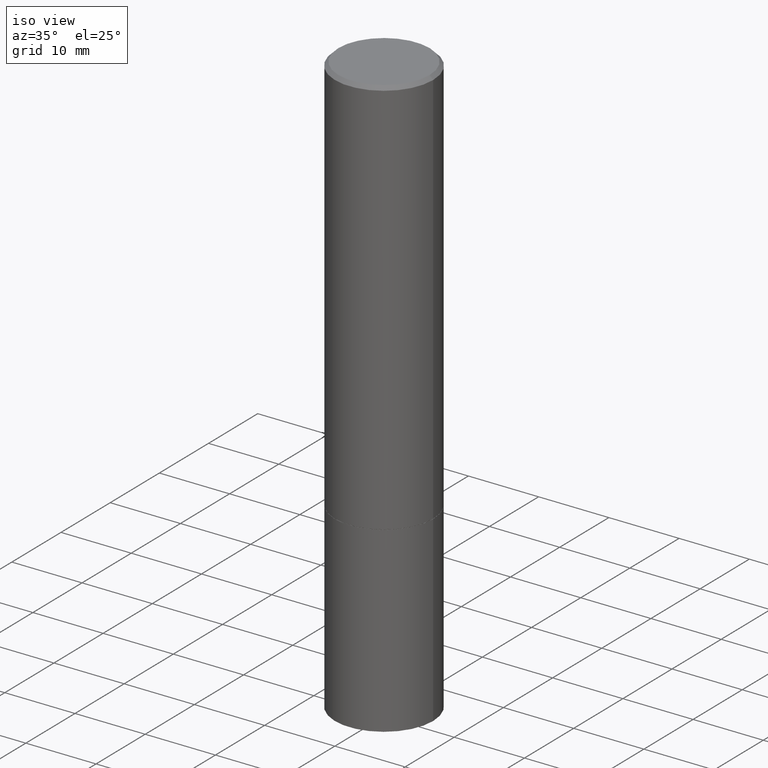
[diagram: clean part render]
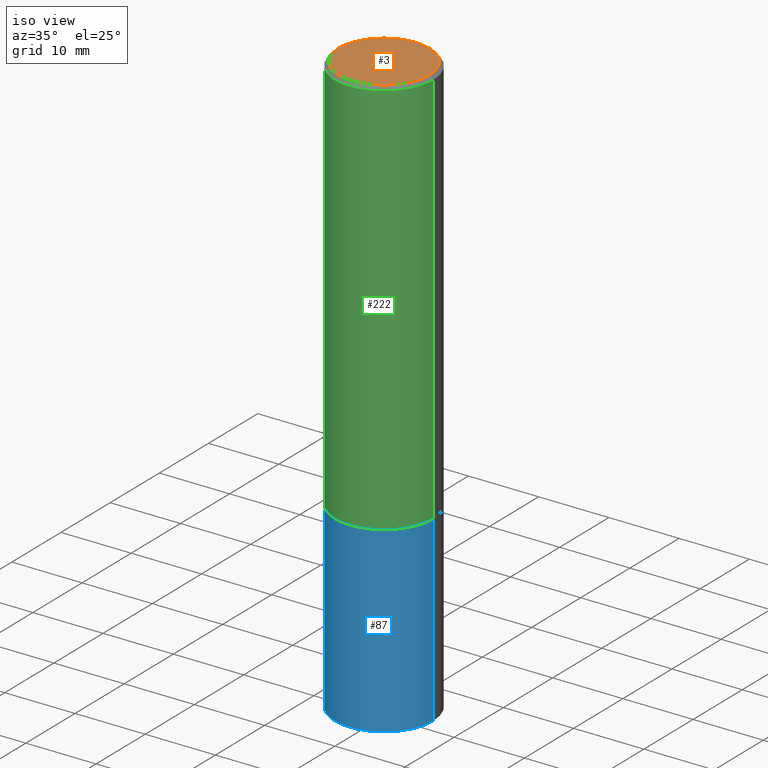
[diagram: same view with three faces highlighted in distinct colors, each labeled with its STEP entity id]
A machine part, iso view with three faces highlighted in distinct colors.
Their STEP definitions:

[orange] entity #3 — the highlighted planar face has unit normal (0, -0, -1).
#3 = ADVANCED_FACE ( 'NONE', ( #169 ), #364, .F. ) ;
#20 = DIRECTION ( 'NONE',  ( 1.000000000000000000, -6.982962677686267499E-15, 4.876201967404967742E-29 ) ) ;
#47 = DIRECTION ( 'NONE',  ( -1.000000000000000000, 6.982962677686265922E-15, -4.876176775795935793E-29 ) ) ;
#57 = VERTEX_POINT ( 'NONE', #366 ) ;
#80 = EDGE_LOOP ( 'NONE', ( #204, #152 ) ) ;
#90 = VERTEX_POINT ( 'NONE', #280 ) ;
#102 = CARTESIAN_POINT ( 'NONE',  ( -1.043851414335219820E-46, 1.490343170380447200E-32, 4.268512490100411279E-18 ) ) ;
#104 = DIRECTION ( 'NONE',  ( 2.438088387897960049E-29, -3.491481338843145188E-15, -1.000000000000000000 ) ) ;
#108 = CARTESIAN_POINT ( 'NONE',  ( 1.784845260416607569E-15, 0.2555999999999997163, -8.902883739632567265E-16 ) ) ;
#110 = DIRECTION ( 'NONE',  ( -2.445468806185136597E-29, 3.491481338843145583E-15, 1.000000000000000000 ) ) ;
#118 = CARTESIAN_POINT ( 'NONE',  ( -1.043851414335219820E-46, 1.490343170380447200E-32, 4.268512490100411279E-18 ) ) ;
#127 = DIRECTION ( 'NONE',  ( 1.000000000000000000, -6.982962677686267499E-15, 4.876201967404967742E-29 ) ) ;
#133 = CIRCLE ( 'NONE', #235, 0.2555999999999997163 ) ;
#152 = ORIENTED_EDGE ( 'NONE', *, *, #324, .T. ) ;
#169 = FACE_OUTER_BOUND ( 'NONE', #80, .T. ) ;
#204 = ORIENTED_EDGE ( 'NONE', *, *, #221, .T. ) ;
#221 = EDGE_CURVE ( 'NONE', #90, #57, #228, .T. ) ;
#223 = AXIS2_PLACEMENT_3D ( 'NONE', #108, #104, #47 ) ;
#228 = CIRCLE ( 'NONE', #365, 0.2555999999999997163 ) ;
#235 = AXIS2_PLACEMENT_3D ( 'NONE', #102, #110, #20 ) ;
#249 = DIRECTION ( 'NONE',  ( -2.445468806185136597E-29, 3.491481338843145583E-15, 1.000000000000000000 ) ) ;
#280 = CARTESIAN_POINT ( 'NONE',  ( -0.2555999999999997163, 1.819760073805039218E-15, 4.268512490087807223E-18 ) ) ;
#324 = EDGE_CURVE ( 'NONE', #57, #90, #133, .T. ) ;
#364 = PLANE ( 'NONE',  #223 ) ;
#365 = AXIS2_PLACEMENT_3D ( 'NONE', #118, #249, #127 ) ;
#366 = CARTESIAN_POINT ( 'NONE',  ( 0.2555999999999997163, -1.857063081596548453E-15, 4.268512490113146298E-18 ) ) ;

[blue] entity #87 — the highlighted cylindrical surface (partial cylindrical patch) has radius 7.0002 mm, axis along (-0, 0, 1).
#4 = VERTEX_POINT ( 'NONE', #106 ) ;
#26 = CARTESIAN_POINT ( 'NONE',  ( -0.2756000000000000116, -7.663917641962989379E-15, -2.244100000000000428 ) ) ;
#30 = AXIS2_PLACEMENT_3D ( 'NONE', #267, #150, #261 ) ;
#40 = DIRECTION ( 'NONE',  ( -2.445468806185136877E-29, 3.491481338843145188E-15, 1.000000000000000000 ) ) ;
#42 = DIRECTION ( 'NONE',  ( 1.000000000000000000, -6.982962677686269866E-15, 0.000000000000000000 ) ) ;
#45 = EDGE_CURVE ( 'NONE', #85, #352, #268, .T. ) ;
#52 = ORIENTED_EDGE ( 'NONE', *, *, #166, .T. ) ;
#58 = AXIS2_PLACEMENT_3D ( 'NONE', #171, #210, #42 ) ;
#59 = DIRECTION ( 'NONE',  ( 1.000000000000000000, -6.982962677686267499E-15, 4.876176775795935793E-29 ) ) ;
#85 = VERTEX_POINT ( 'NONE', #295 ) ;
#87 = ADVANCED_FACE ( 'NONE', ( #344 ), #318, .T. ) ;
#106 = CARTESIAN_POINT ( 'NONE',  ( 0.2756000000000000116, -9.759737786468238871E-15, -2.244100000000000428 ) ) ;
#116 = CARTESIAN_POINT ( 'NONE',  ( 0.000000000000000000, 0.000000000000000000, 0.000000000000000000 ) ) ;
#136 = CARTESIAN_POINT ( 'NONE',  ( 0.2756000000000000116, -1.333361808490808139E-14, -3.267700000000000049 ) ) ;
#140 = AXIS2_PLACEMENT_3D ( 'NONE', #116, #217, #59 ) ;
#150 = DIRECTION ( 'NONE',  ( -2.445468806185136597E-29, 3.491481338843145583E-15, 1.000000000000000000 ) ) ;
#159 = EDGE_LOOP ( 'NONE', ( #242, #212, #52, #175 ) ) ;
#160 = CIRCLE ( 'NONE', #58, 0.2756000000000000116 ) ;
#166 = EDGE_CURVE ( 'NONE', #352, #4, #177, .T. ) ;
#171 = CARTESIAN_POINT ( 'NONE',  ( 5.487876547960065873E-29, -7.835233272497903917E-15, -2.244100000000000428 ) ) ;
#174 = DIRECTION ( 'NONE',  ( -2.445468806185136877E-29, 3.491481338843145188E-15, 1.000000000000000000 ) ) ;
#175 = ORIENTED_EDGE ( 'NONE', *, *, #185, .F. ) ;
#177 = LINE ( 'NONE', #363, #196 ) ;
#185 = EDGE_CURVE ( 'NONE', #306, #4, #160, .T. ) ;
#193 = EDGE_CURVE ( 'NONE', #85, #306, #258, .T. ) ;
#196 = VECTOR ( 'NONE', #40, 39.37007874015748143 ) ;
#205 = CARTESIAN_POINT ( 'NONE',  ( -0.2756000000000000116, 1.958255779754836195E-15, -1.355658510874252007E-29 ) ) ;
#210 = DIRECTION ( 'NONE',  ( -2.445468806185136597E-29, 3.491481338843145583E-15, 1.000000000000000000 ) ) ;
#212 = ORIENTED_EDGE ( 'NONE', *, *, #45, .T. ) ;
#217 = DIRECTION ( 'NONE',  ( -2.445468806185136597E-29, 3.491481338843145583E-15, 1.000000000000000000 ) ) ;
#242 = ORIENTED_EDGE ( 'NONE', *, *, #193, .F. ) ;
#258 = LINE ( 'NONE', #205, #323 ) ;
#261 = DIRECTION ( 'NONE',  ( 1.000000000000000000, -6.982962677686265922E-15, 0.000000000000000000 ) ) ;
#267 = CARTESIAN_POINT ( 'NONE',  ( 7.991058417971171713E-29, -1.140911357093774644E-14, -3.267700000000000049 ) ) ;
#268 = CIRCLE ( 'NONE', #30, 0.2756000000000000116 ) ;
#295 = CARTESIAN_POINT ( 'NONE',  ( -0.2756000000000000116, -7.663917641962989379E-15, -3.267700000000000049 ) ) ;
#306 = VERTEX_POINT ( 'NONE', #26 ) ;
#318 = CYLINDRICAL_SURFACE ( 'NONE', #140, 0.2756000000000000116 ) ;
#323 = VECTOR ( 'NONE', #174, 39.37007874015748143 ) ;
#344 = FACE_OUTER_BOUND ( 'NONE', #159, .T. ) ;
#352 = VERTEX_POINT ( 'NONE', #136 ) ;
#363 = CARTESIAN_POINT ( 'NONE',  ( 0.2756000000000000116, -1.924504513970335348E-15, 1.343874319409359987E-29 ) ) ;

[green] entity #222 — the highlighted cylindrical surface (partial cylindrical patch) has radius 7.0002 mm, axis along (-0, 0, 1).
#5 = CIRCLE ( 'NONE', #241, 0.2756000000000000116 ) ;
#23 = ORIENTED_EDGE ( 'NONE', *, *, #213, .T. ) ;
#29 = CARTESIAN_POINT ( 'NONE',  ( 0.2755999999999997341, -1.960582874962695433E-15, -0.02000000000000006287 ) ) ;
#56 = DIRECTION ( 'NONE',  ( -2.445468806185136597E-29, 3.491481338843145583E-15, 1.000000000000000000 ) ) ;
#65 = EDGE_CURVE ( 'NONE', #243, #316, #5, .T. ) ;
#70 = CARTESIAN_POINT ( 'NONE',  ( -0.2755999999999999006, 1.958255779754835406E-15, -1.355658510874251446E-29 ) ) ;
#74 = DIRECTION ( 'NONE',  ( -2.445468806185136597E-29, 3.491481338843145583E-15, 1.000000000000000000 ) ) ;
#79 = ORIENTED_EDGE ( 'NONE', *, *, #176, .F. ) ;
#105 = ORIENTED_EDGE ( 'NONE', *, *, #164, .F. ) ;
#107 = AXIS2_PLACEMENT_3D ( 'NONE', #203, #74, #333 ) ;
#114 = CARTESIAN_POINT ( 'NONE',  ( 0.2756000000000000116, -9.756246305129397442E-15, -2.243100000000000094 ) ) ;
#128 = VECTOR ( 'NONE', #183, 39.37007874015748143 ) ;
#146 = LINE ( 'NONE', #70, #308 ) ;
#164 = EDGE_CURVE ( 'NONE', #348, #211, #292, .T. ) ;
#172 = AXIS2_PLACEMENT_3D ( 'NONE', #320, #343, #349 ) ;
#176 = EDGE_CURVE ( 'NONE', #243, #348, #146, .T. ) ;
#183 = DIRECTION ( 'NONE',  ( -2.445468806185136877E-29, 3.491481338843145188E-15, 1.000000000000000000 ) ) ;
#191 = CARTESIAN_POINT ( 'NONE',  ( -0.2756000000000000116, -1.992529929213123148E-15, -2.243100000000000094 ) ) ;
#200 = DIRECTION ( 'NONE',  ( -2.445468806185136877E-29, 3.491481338843145188E-15, 1.000000000000000000 ) ) ;
#203 = CARTESIAN_POINT ( 'NONE',  ( 4.890937612370288923E-31, -6.982962677686312563E-17, -0.02000000000000006287 ) ) ;
#211 = VERTEX_POINT ( 'NONE', #29 ) ;
#213 = EDGE_CURVE ( 'NONE', #316, #211, #276, .T. ) ;
#222 = ADVANCED_FACE ( 'NONE', ( #294 ), #278, .T. ) ;
#241 = AXIS2_PLACEMENT_3D ( 'NONE', #350, #56, #325 ) ;
#243 = VERTEX_POINT ( 'NONE', #191 ) ;
#253 = CARTESIAN_POINT ( 'NONE',  ( 0.2755999999999999006, -1.924504513970334165E-15, 1.343874319409359427E-29 ) ) ;
#257 = CARTESIAN_POINT ( 'NONE',  ( -0.2755999999999997341, 1.854674887193470472E-15, -0.02000000000000006287 ) ) ;
#276 = LINE ( 'NONE', #253, #128 ) ;
#278 = CYLINDRICAL_SURFACE ( 'NONE', #172, 0.2755999999999999006 ) ;
#292 = CIRCLE ( 'NONE', #107, 0.2755999999999997341 ) ;
#294 = FACE_OUTER_BOUND ( 'NONE', #297, .T. ) ;
#297 = EDGE_LOOP ( 'NONE', ( #79, #340, #23, #105 ) ) ;
#308 = VECTOR ( 'NONE', #200, 39.37007874015748143 ) ;
#316 = VERTEX_POINT ( 'NONE', #114 ) ;
#320 = CARTESIAN_POINT ( 'NONE',  ( 0.000000000000000000, 0.000000000000000000, 0.000000000000000000 ) ) ;
#325 = DIRECTION ( 'NONE',  ( 1.000000000000000000, -6.982962677686269866E-15, 0.000000000000000000 ) ) ;
#333 = DIRECTION ( 'NONE',  ( 1.000000000000000000, -6.982962677686267499E-15, 0.000000000000000000 ) ) ;
#340 = ORIENTED_EDGE ( 'NONE', *, *, #65, .T. ) ;
#343 = DIRECTION ( 'NONE',  ( -2.445468806185136597E-29, 3.491481338843145583E-15, 1.000000000000000000 ) ) ;
#348 = VERTEX_POINT ( 'NONE', #257 ) ;
#349 = DIRECTION ( 'NONE',  ( 1.000000000000000000, -6.982962677686265922E-15, 4.876176775795935793E-29 ) ) ;
#350 = CARTESIAN_POINT ( 'NONE',  ( 5.485431079153880270E-29, -7.831741791159060910E-15, -2.243100000000000094 ) ) ;